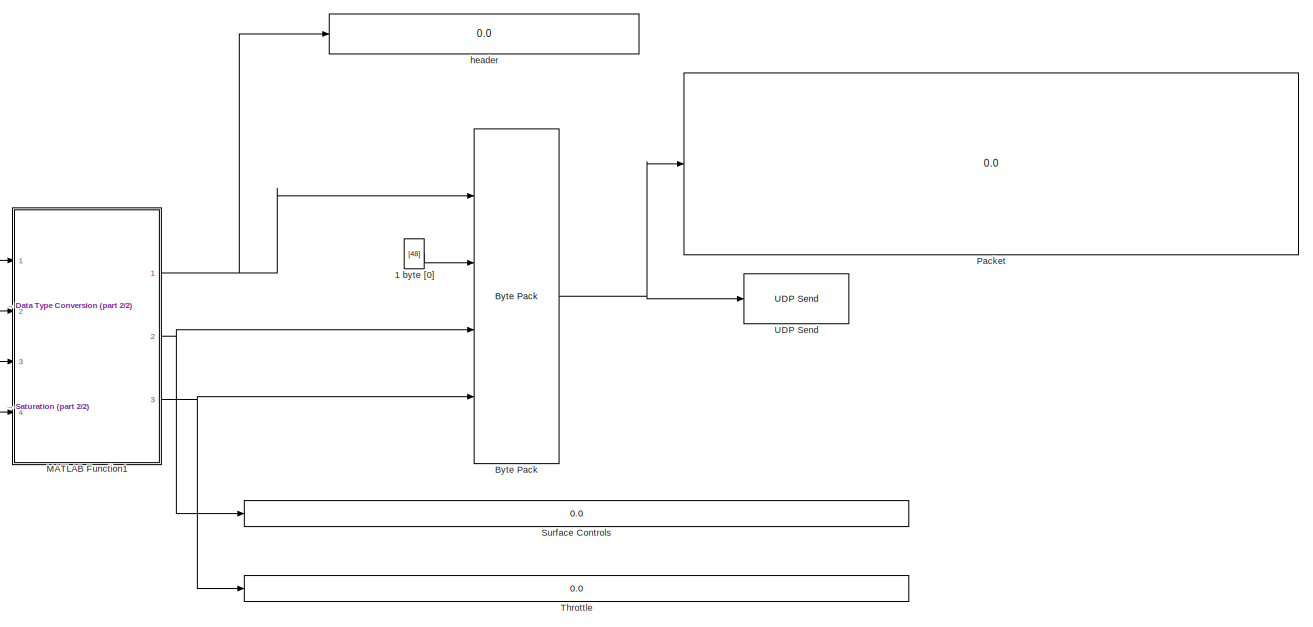
[diagram: root canvas - part 1/2, most of the canvas]
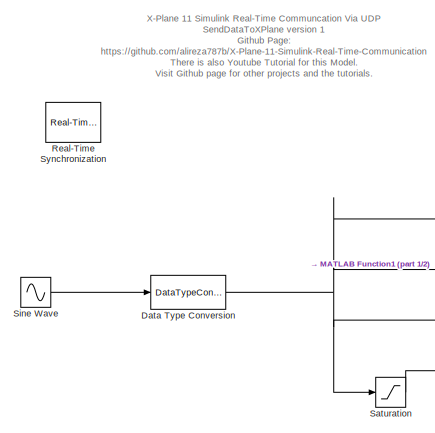
[diagram: root canvas - part 2/2, middle left region]
MODEL slx_de203561a0ca
KIND model
BLOCK [Constant] 1 byte [0]
  OutDataTypeStr = uint8
  Value = [48]
BLOCK [Reference] Byte Pack  REF=etargetslib/Byte Pack
  MultiThreadCoSim = auto
  Ports = [4, 1]
  SourceBlock = etargetslib/Byte Pack
  SourceType = Byte pack
  byteAlign = 1
  datatypes = {'uint8','uint8','single','single'}
BLOCK [DataTypeConversion] Data Type Conversion
  OutDataTypeStr = single
  RndMeth = Floor
  SaturateOnIntegerOverflow = off
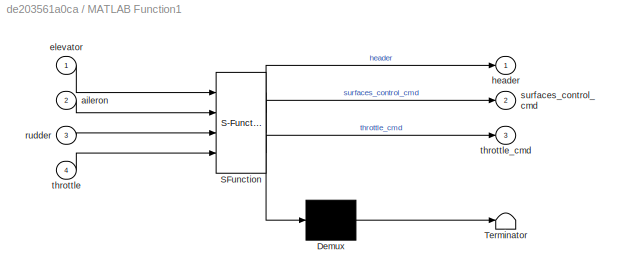
BLOCK [SubSystem] MATLAB Function1
  ErrorFcn = Stateflow.Translate.translate
  PermitHierarchicalResolution = ParametersOnly
  Ports = [4, 3]
  RequestExecContextInheritance = off
  SFBlockType = MATLAB Function
  TreatAsAtomicUnit = on
BLOCK [Demux] MATLAB Function1/ Demux 
  Outputs = 1
  Ports = [1, 1]
BLOCK [S-Function] MATLAB Function1/ SFunction 
  EnableBusSupport = on
  FunctionName = sf_sfun
  PortCounts = [4 4]
  Ports = [4, 4]
  SFunctionDeploymentMode = off
  Tag = Stateflow S-Function sendDataToXplane 1
BLOCK [Terminator] MATLAB Function1/ Terminator 
BLOCK [Inport] MATLAB Function1/aileron
  IconDisplay = Port number
  Port = 2
BLOCK [Inport] MATLAB Function1/elevator
  IconDisplay = Port number
BLOCK [Outport] MATLAB Function1/header
  IconDisplay = Port number
BLOCK [Inport] MATLAB Function1/rudder
  IconDisplay = Port number
  Port = 3
BLOCK [Outport] MATLAB Function1/surfaces_control_cmd
  IconDisplay = Port number
  Port = 2
BLOCK [Inport] MATLAB Function1/throttle
  IconDisplay = Port number
  Port = 4
BLOCK [Outport] MATLAB Function1/throttle_cmd
  IconDisplay = Port number
  Port = 3
BLOCK [Display] Packet
  Decimation = 1
  Ports = [1]
BLOCK [Reference] Real-Time Synchronization  REF=rtwinlib/Real-Time
Synchronization
  MaxMissedTicks = 10
  MultiThreadCoSim = auto
  Ports = []
  SampleTime = .02
  ShowMissedTicks = off
  SourceBlock = rtwinlib/Real-Time\nSynchronization
  SourceType = Simulink Desktop Real-Time Synchronization
  YieldWhenWaiting = off
BLOCK [Saturate] Saturation
  InputPortMap = u0
  LowerLimit = 0
  Ports = [1, 1]
  UpperLimit = 1
BLOCK [Sin] Sine Wave
  Ports = [0, 1]
  SampleTime = 0
BLOCK [Display] Surface Controls
  Decimation = 1
  Ports = [1]
BLOCK [Display] Throttle
  Decimation = 1
  Ports = [1]
BLOCK [Reference] UDP Send  REF=dspnetwork/UDP Send
  MultiThreadCoSim = auto
  Ports = [1]
  SourceBlock = dspnetwork/UDP Send
  SourceType = UDP Send
  blockPlatform = []
  localPort = -1
  localPortSource = Automatically determine
  localURL = '0.0.0.0'
  remotePort = 49000
  remoteURL = '127.0.0.1'
  sampletime = -1
  separateLengthPort = 0
BLOCK [Display] header
  Decimation = 1
  Ports = [1]
ANNOTATION (root): X-Plane 11 Simulink Real-Time Communcation Via UDP SendDataToXPlane version 1 Github Page: https://github.com/alireza787b/X-Plane-11-Simulink-Real-Time-Communication There is also Youtube Tutorial for this Model. Visit Github page for other projects and the tutorials.
LINE 1 byte [0]:1 -> Byte Pack:2
NET Byte Pack:1 -> Packet:1, UDP Send:1
NET Data Type Conversion:1 -> MATLAB Function1:1, MATLAB Function1:2, MATLAB Function1:3, Saturation:1
NET MATLAB Function1:1 -> Byte Pack:1, header:1
NET MATLAB Function1:2 -> Byte Pack:3, Surface Controls:1
NET MATLAB Function1:3 -> Byte Pack:4, Throttle:1
LINE Saturation:1 -> MATLAB Function1:4
LINE Sine Wave:1 -> Data Type Conversion:1
note: NET lines group one-source signal fan-out (src -> all destinations, sorted); 1:1 wires keep LINE
